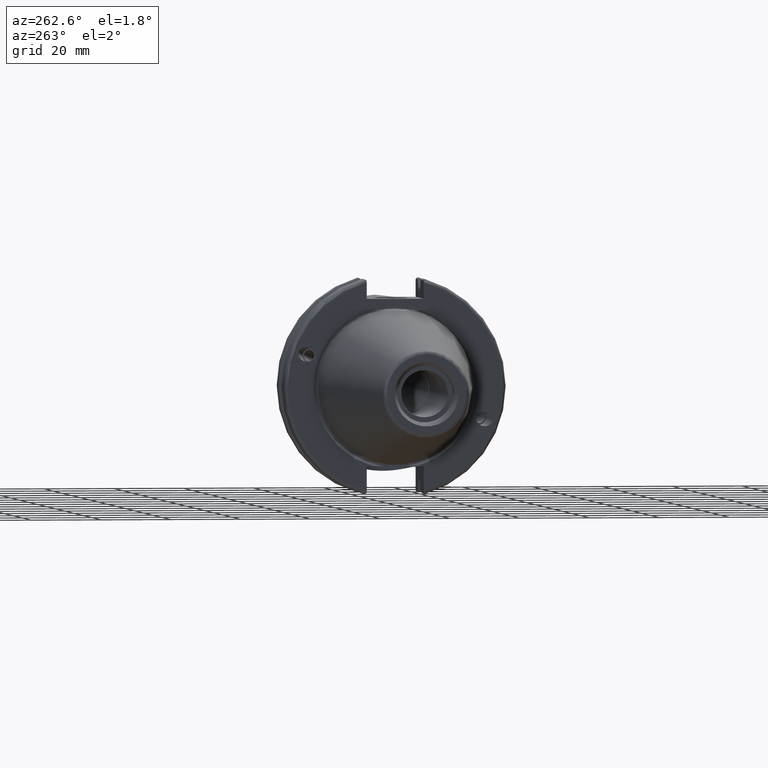
[diagram: clean part render]
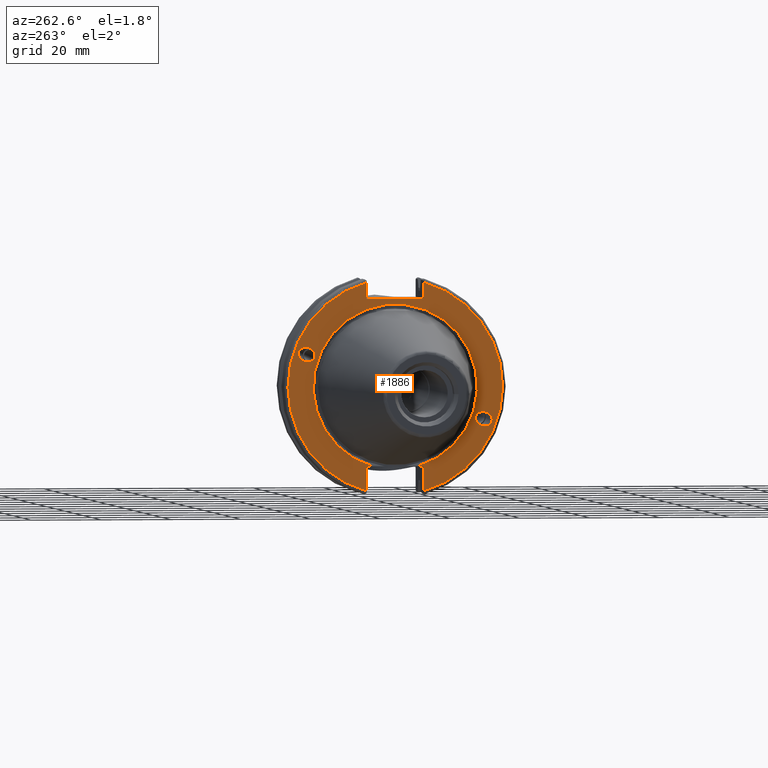
[diagram: same view with one face highlighted and labeled with its STEP entity id]
A machine part, auxiliary view. The second image highlights one B-rep face of the part: STEP entity #1886.
In plain terms, the highlighted planar face has unit normal (-1, 0, 0).
Its self-contained STEP definition (entity closure, byte-faithful):
#41=ELLIPSE('',#2073,2.4415491775229,1.99999999999999);
#50=ELLIPSE('',#2117,2.4415491775229,1.99999999999999);
#126=FACE_BOUND('',#561,.T.);
#127=FACE_BOUND('',#562,.T.);
#149=PLANE('',#2133);
#224=LINE('',#3516,#317);
#228=LINE('',#3562,#321);
#236=LINE('',#3598,#329);
#238=LINE('',#3622,#331);
#239=LINE('',#3626,#332);
#240=LINE('',#3628,#333);
#241=LINE('',#3631,#334);
#317=VECTOR('',#2614,10.);
#321=VECTOR('',#2626,10.);
#329=VECTOR('',#2636,10.);
#331=VECTOR('',#2646,10.);
#332=VECTOR('',#2649,10.);
#333=VECTOR('',#2650,10.);
#334=VECTOR('',#2653,10.);
#445=FACE_OUTER_BOUND('',#560,.T.);
#560=EDGE_LOOP('',(#1617,#1618,#1619,#1620,#1621,#1622,#1623,#1624,#1625,
#1626));
#561=EDGE_LOOP('',(#1627));
#562=EDGE_LOOP('',(#1628));
#702=CIRCLE('',#2132,30.75);
#703=CIRCLE('',#2134,30.75);
#704=CIRCLE('',#2135,23.5);
#823=VERTEX_POINT('',#3246);
#864=VERTEX_POINT('',#3449);
#876=VERTEX_POINT('',#3508);
#877=VERTEX_POINT('',#3515);
#883=VERTEX_POINT('',#3559);
#884=VERTEX_POINT('',#3561);
#892=VERTEX_POINT('',#3590);
#893=VERTEX_POINT('',#3597);
#896=VERTEX_POINT('',#3623);
#897=VERTEX_POINT('',#3625);
#898=VERTEX_POINT('',#3627);
#899=VERTEX_POINT('',#3629);
#1055=EDGE_CURVE('',#823,#823,#41,.T.);
#1112=EDGE_CURVE('',#864,#864,#50,.T.);
#1129=EDGE_CURVE('',#877,#876,#224,.T.);
#1139=EDGE_CURVE('',#884,#883,#228,.T.);
#1151=EDGE_CURVE('',#893,#892,#236,.T.);
#1156=EDGE_CURVE('',#884,#892,#702,.T.);
#1157=EDGE_CURVE('',#883,#877,#238,.T.);
#1158=EDGE_CURVE('',#896,#876,#703,.T.);
#1159=EDGE_CURVE('',#896,#897,#239,.T.);
#1160=EDGE_CURVE('',#897,#898,#240,.T.);
#1161=EDGE_CURVE('',#898,#899,#704,.T.);
#1162=EDGE_CURVE('',#899,#893,#241,.T.);
#1617=ORIENTED_EDGE('',*,*,#1156,.F.);
#1618=ORIENTED_EDGE('',*,*,#1139,.T.);
#1619=ORIENTED_EDGE('',*,*,#1157,.T.);
#1620=ORIENTED_EDGE('',*,*,#1129,.T.);
#1621=ORIENTED_EDGE('',*,*,#1158,.F.);
#1622=ORIENTED_EDGE('',*,*,#1159,.T.);
#1623=ORIENTED_EDGE('',*,*,#1160,.T.);
#1624=ORIENTED_EDGE('',*,*,#1161,.T.);
#1625=ORIENTED_EDGE('',*,*,#1162,.T.);
#1626=ORIENTED_EDGE('',*,*,#1151,.T.);
#1627=ORIENTED_EDGE('',*,*,#1055,.T.);
#1628=ORIENTED_EDGE('',*,*,#1112,.T.);
#1886=ADVANCED_FACE('',(#445,#126,#127),#149,.T.);
#2073=AXIS2_PLACEMENT_3D('',#3248,#2487,#2488);
#2117=AXIS2_PLACEMENT_3D('',#3451,#2591,#2592);
#2132=AXIS2_PLACEMENT_3D('',#3620,#2642,#2643);
#2133=AXIS2_PLACEMENT_3D('',#3621,#2644,#2645);
#2134=AXIS2_PLACEMENT_3D('',#3624,#2647,#2648);
#2135=AXIS2_PLACEMENT_3D('',#3630,#2651,#2652);
#2487=DIRECTION('center_axis',(1.,0.,0.));
#2488=DIRECTION('ref_axis',(0.,-0.939692620785908,-0.342020143325669));
#2591=DIRECTION('center_axis',(1.,0.,0.));
#2592=DIRECTION('ref_axis',(0.,0.939692620785908,0.342020143325669));
#2614=DIRECTION('',(0.,0.,1.));
#2626=DIRECTION('',(0.,0.,-1.));
#2636=DIRECTION('',(0.,0.,-1.));
#2642=DIRECTION('center_axis',(1.,0.,0.));
#2643=DIRECTION('ref_axis',(0.,-1.,1.60812264967664E-16));
#2644=DIRECTION('center_axis',(-1.,0.,0.));
#2645=DIRECTION('ref_axis',(0.,0.,1.));
#2646=DIRECTION('',(0.,1.,0.));
#2647=DIRECTION('center_axis',(1.,0.,0.));
#2648=DIRECTION('ref_axis',(0.,1.,1.60812264967664E-16));
#2649=DIRECTION('',(0.,0.,1.));
#2650=DIRECTION('',(0.,-1.,0.));
#2651=DIRECTION('center_axis',(1.,0.,0.));
#2652=DIRECTION('ref_axis',(0.,0.,-1.));
#2653=DIRECTION('',(0.,-1.,0.));
#3246=CARTESIAN_POINT('',(1.,-23.0773950158154,-8.39948487016));
#3248=CARTESIAN_POINT('Origin',(1.,-25.3717007612195,-9.23454386979305));
#3449=CARTESIAN_POINT('',(1.,23.0773950158154,8.39948487016001));
#3451=CARTESIAN_POINT('Origin',(1.,25.3717007612195,9.23454386979306));
#3508=CARTESIAN_POINT('',(1.,8.19,29.6392712461019));
#3515=CARTESIAN_POINT('',(1.,8.19,25.));
#3516=CARTESIAN_POINT('',(1.,8.19,12.5));
#3559=CARTESIAN_POINT('',(1.,-8.19,25.));
#3561=CARTESIAN_POINT('',(1.,-8.18999999999999,29.6392712461019));
#3562=CARTESIAN_POINT('',(1.,-8.18999999999999,12.5));
#3590=CARTESIAN_POINT('',(1.,-8.19,-29.6392712461019));
#3597=CARTESIAN_POINT('',(1.,-8.19,-22.6));
#3598=CARTESIAN_POINT('',(1.,-8.19,-11.3));
#3620=CARTESIAN_POINT('Origin',(1.,0.,0.));
#3621=CARTESIAN_POINT('Origin',(1.,31.75,0.));
#3622=CARTESIAN_POINT('',(1.,15.875,25.));
#3623=CARTESIAN_POINT('',(1.,8.18999999999999,-29.6392712461019));
#3624=CARTESIAN_POINT('Origin',(1.,0.,0.));
#3625=CARTESIAN_POINT('',(0.999999999999998,8.19,-22.6));
#3626=CARTESIAN_POINT('',(1.,8.18999999999999,-11.3));
#3627=CARTESIAN_POINT('',(0.999999999999997,6.4412731660752,-22.6));
#3628=CARTESIAN_POINT('',(1.,15.875,-22.6));
#3629=CARTESIAN_POINT('',(1.,-6.44127316607517,-22.6));
#3630=CARTESIAN_POINT('Origin',(0.999999999999996,0.,0.));
#3631=CARTESIAN_POINT('',(1.,15.875,-22.6));